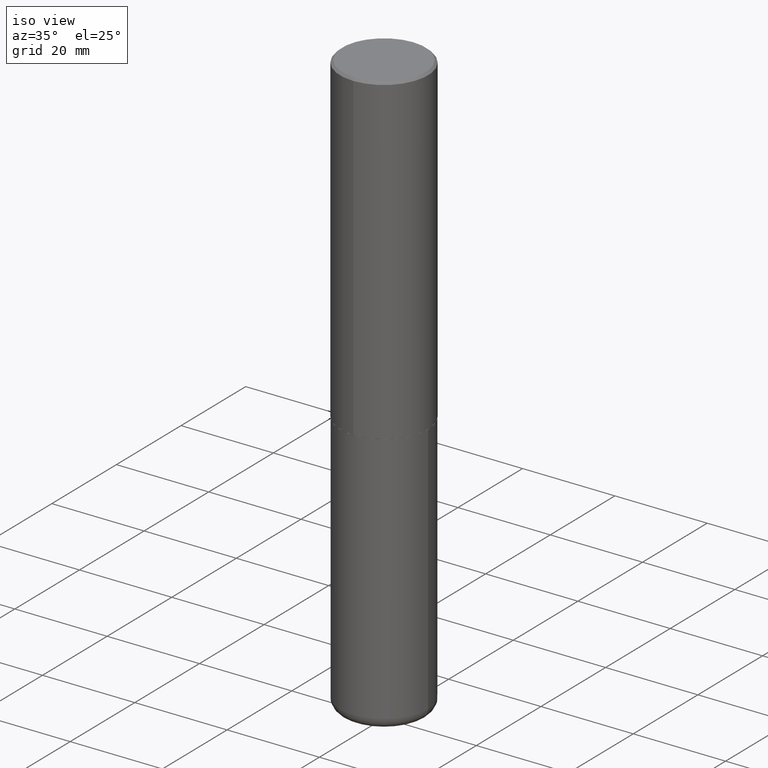
[diagram: clean part render]
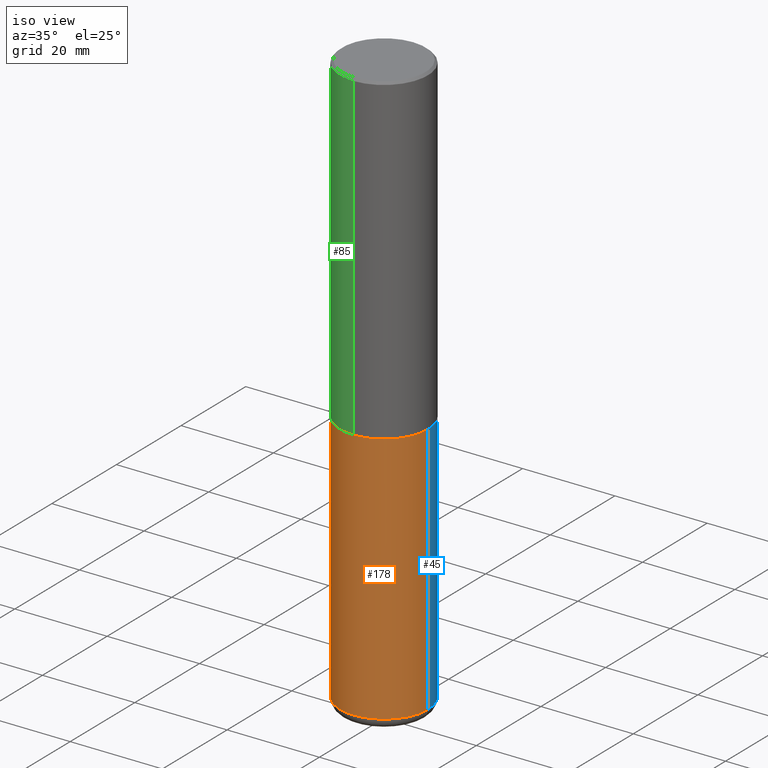
[diagram: same view with three faces highlighted in distinct colors, each labeled with its STEP entity id]
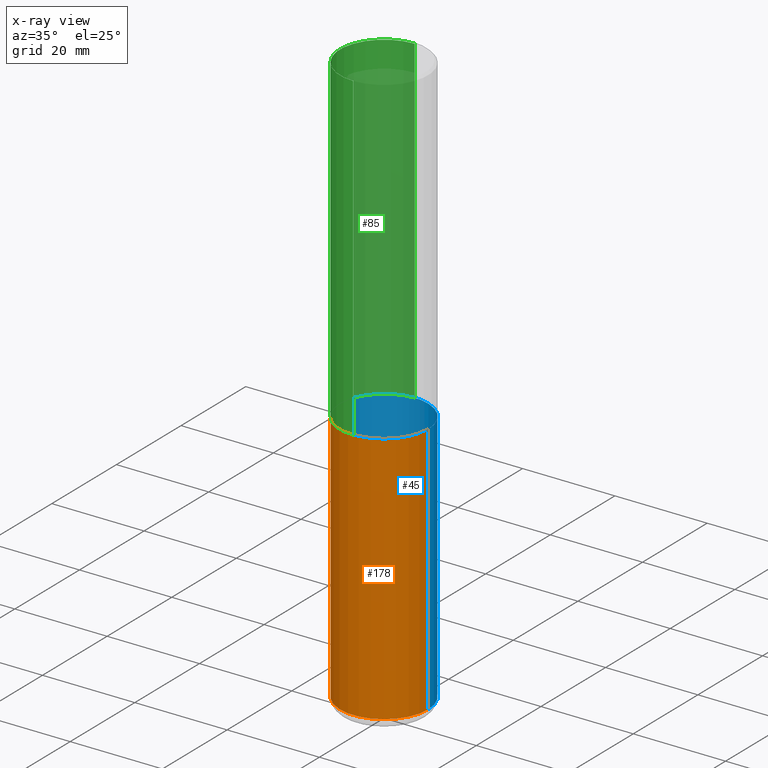
[diagram: x-ray of the same camera — body ghosted, the three highlighted faces saturated]
A machine part, iso view with three faces highlighted in distinct colors.
The next image is the same camera in x-ray (body ghosted, the three faces saturated) — at least one of them is partly hidden behind the body in this view.
Their STEP definitions:

[orange] entity #178 — the highlighted cylindrical surface (partial cylindrical patch) has radius 9.525 mm, axis along (-0, 0, 1).
#9 = EDGE_CURVE ( 'NONE', #321, #94, #116, .T. ) ;
#19 = CARTESIAN_POINT ( 'NONE',  ( -0.3750000000000000555, -1.070783826866887333E-14, -2.750000000000000000 ) ) ;
#20 = DIRECTION ( 'NONE',  ( -2.445468806185136877E-29, 3.491481338843145188E-15, 1.000000000000000000 ) ) ;
#33 = ORIENTED_EDGE ( 'NONE', *, *, #9, .T. ) ;
#34 = DIRECTION ( 'NONE',  ( -2.445468806185136597E-29, 3.491481338843145583E-15, 1.000000000000000000 ) ) ;
#39 = CARTESIAN_POINT ( 'NONE',  ( 0.3749999999999999445, -1.976178437785219664E-14, -4.910000000000000142 ) ) ;
#60 = DIRECTION ( 'NONE',  ( -2.445468806185136597E-29, 3.491481338843145583E-15, 1.000000000000000000 ) ) ;
#70 = CIRCLE ( 'NONE', #402, 0.3749999999999999445 ) ;
#90 = VERTEX_POINT ( 'NONE', #19 ) ;
#91 = VECTOR ( 'NONE', #20, 39.37007874015748143 ) ;
#93 = EDGE_CURVE ( 'NONE', #373, #90, #351, .T. ) ;
#94 = VERTEX_POINT ( 'NONE', #145 ) ;
#99 = AXIS2_PLACEMENT_3D ( 'NONE', #150, #60, #158 ) ;
#106 = DIRECTION ( 'NONE',  ( 1.000000000000000000, -6.982962677686266711E-15, 0.000000000000000000 ) ) ;
#116 = LINE ( 'NONE', #285, #166 ) ;
#145 = CARTESIAN_POINT ( 'NONE',  ( 0.3750000000000000555, -1.222018468595100145E-14, -2.750000000000000000 ) ) ;
#150 = CARTESIAN_POINT ( 'NONE',  ( 0.000000000000000000, 0.000000000000000000, 0.000000000000000000 ) ) ;
#158 = DIRECTION ( 'NONE',  ( 1.000000000000000000, -6.982962677686266711E-15, 4.876176775795935793E-29 ) ) ;
#166 = VECTOR ( 'NONE', #415, 39.37007874015748143 ) ;
#175 = CARTESIAN_POINT ( 'NONE',  ( 1.200725183836902132E-28, -1.714317337371984662E-14, -4.910000000000000142 ) ) ;
#178 = ADVANCED_FACE ( 'NONE', ( #278 ), #375, .T. ) ;
#213 = EDGE_CURVE ( 'NONE', #90, #94, #336, .T. ) ;
#221 = CARTESIAN_POINT ( 'NONE',  ( -0.3749999999999999445, -1.447863811461947092E-14, -4.910000000000000142 ) ) ;
#276 = DIRECTION ( 'NONE',  ( 1.000000000000000000, -6.982962677686269077E-15, 0.000000000000000000 ) ) ;
#278 = FACE_OUTER_BOUND ( 'NONE', #356, .T. ) ;
#285 = CARTESIAN_POINT ( 'NONE',  ( 0.3749999999999999445, -2.618611004132349622E-15, 1.828566290923475642E-29 ) ) ;
#292 = ORIENTED_EDGE ( 'NONE', *, *, #213, .F. ) ;
#306 = DIRECTION ( 'NONE',  ( -2.445468806185136597E-29, 3.491481338843145583E-15, 1.000000000000000000 ) ) ;
#321 = VERTEX_POINT ( 'NONE', #39 ) ;
#336 = CIRCLE ( 'NONE', #374, 0.3750000000000000555 ) ;
#351 = LINE ( 'NONE', #412, #91 ) ;
#356 = EDGE_LOOP ( 'NONE', ( #386, #377, #33, #292 ) ) ;
#367 = CARTESIAN_POINT ( 'NONE',  ( 6.725039217009124520E-29, -9.601573681818649859E-15, -2.750000000000000000 ) ) ;
#373 = VERTEX_POINT ( 'NONE', #221 ) ;
#374 = AXIS2_PLACEMENT_3D ( 'NONE', #367, #34, #106 ) ;
#375 = CYLINDRICAL_SURFACE ( 'NONE', #99, 0.3749999999999999445 ) ;
#377 = ORIENTED_EDGE ( 'NONE', *, *, #405, .T. ) ;
#386 = ORIENTED_EDGE ( 'NONE', *, *, #93, .F. ) ;
#402 = AXIS2_PLACEMENT_3D ( 'NONE', #175, #306, #276 ) ;
#405 = EDGE_CURVE ( 'NONE', #373, #321, #70, .T. ) ;
#412 = CARTESIAN_POINT ( 'NONE',  ( -0.3749999999999999445, 2.664535259100375303E-15, -1.844600658845589318E-29 ) ) ;
#415 = DIRECTION ( 'NONE',  ( -2.445468806185136877E-29, 3.491481338843145188E-15, 1.000000000000000000 ) ) ;

[blue] entity #45 — the highlighted cylindrical surface (partial cylindrical patch) has radius 9.525 mm, axis along (-0, 0, 1).
#1 = AXIS2_PLACEMENT_3D ( 'NONE', #21, #252, #312 ) ;
#9 = EDGE_CURVE ( 'NONE', #321, #94, #116, .T. ) ;
#19 = CARTESIAN_POINT ( 'NONE',  ( -0.3750000000000000555, -1.070783826866887333E-14, -2.750000000000000000 ) ) ;
#20 = DIRECTION ( 'NONE',  ( -2.445468806185136877E-29, 3.491481338843145188E-15, 1.000000000000000000 ) ) ;
#21 = CARTESIAN_POINT ( 'NONE',  ( 0.000000000000000000, 0.000000000000000000, 0.000000000000000000 ) ) ;
#39 = CARTESIAN_POINT ( 'NONE',  ( 0.3749999999999999445, -1.976178437785219664E-14, -4.910000000000000142 ) ) ;
#45 = ADVANCED_FACE ( 'NONE', ( #341 ), #222, .T. ) ;
#46 = ORIENTED_EDGE ( 'NONE', *, *, #288, .T. ) ;
#61 = ORIENTED_EDGE ( 'NONE', *, *, #93, .T. ) ;
#90 = VERTEX_POINT ( 'NONE', #19 ) ;
#91 = VECTOR ( 'NONE', #20, 39.37007874015748143 ) ;
#93 = EDGE_CURVE ( 'NONE', #373, #90, #351, .T. ) ;
#94 = VERTEX_POINT ( 'NONE', #145 ) ;
#116 = LINE ( 'NONE', #285, #166 ) ;
#134 = CARTESIAN_POINT ( 'NONE',  ( 1.200725183836902132E-28, -1.714317337371984662E-14, -4.910000000000000142 ) ) ;
#145 = CARTESIAN_POINT ( 'NONE',  ( 0.3750000000000000555, -1.222018468595100145E-14, -2.750000000000000000 ) ) ;
#161 = CIRCLE ( 'NONE', #310, 0.3749999999999999445 ) ;
#163 = ORIENTED_EDGE ( 'NONE', *, *, #320, .F. ) ;
#166 = VECTOR ( 'NONE', #415, 39.37007874015748143 ) ;
#197 = DIRECTION ( 'NONE',  ( -2.445468806185136597E-29, 3.491481338843145583E-15, 1.000000000000000000 ) ) ;
#206 = CARTESIAN_POINT ( 'NONE',  ( 6.725039217009124520E-29, -9.601573681818649859E-15, -2.750000000000000000 ) ) ;
#221 = CARTESIAN_POINT ( 'NONE',  ( -0.3749999999999999445, -1.447863811461947092E-14, -4.910000000000000142 ) ) ;
#222 = CYLINDRICAL_SURFACE ( 'NONE', #1, 0.3749999999999999445 ) ;
#226 = ORIENTED_EDGE ( 'NONE', *, *, #9, .F. ) ;
#249 = EDGE_LOOP ( 'NONE', ( #46, #61, #163, #226 ) ) ;
#252 = DIRECTION ( 'NONE',  ( -2.445468806185136597E-29, 3.491481338843145583E-15, 1.000000000000000000 ) ) ;
#262 = AXIS2_PLACEMENT_3D ( 'NONE', #206, #304, #394 ) ;
#264 = DIRECTION ( 'NONE',  ( 1.000000000000000000, -6.982962677686269077E-15, 0.000000000000000000 ) ) ;
#285 = CARTESIAN_POINT ( 'NONE',  ( 0.3749999999999999445, -2.618611004132349622E-15, 1.828566290923475642E-29 ) ) ;
#288 = EDGE_CURVE ( 'NONE', #321, #373, #161, .T. ) ;
#302 = CIRCLE ( 'NONE', #262, 0.3750000000000000555 ) ;
#304 = DIRECTION ( 'NONE',  ( -2.445468806185136597E-29, 3.491481338843145583E-15, 1.000000000000000000 ) ) ;
#310 = AXIS2_PLACEMENT_3D ( 'NONE', #134, #197, #264 ) ;
#312 = DIRECTION ( 'NONE',  ( 1.000000000000000000, -6.982962677686266711E-15, 4.876176775795935793E-29 ) ) ;
#320 = EDGE_CURVE ( 'NONE', #94, #90, #302, .T. ) ;
#321 = VERTEX_POINT ( 'NONE', #39 ) ;
#341 = FACE_OUTER_BOUND ( 'NONE', #249, .T. ) ;
#351 = LINE ( 'NONE', #412, #91 ) ;
#373 = VERTEX_POINT ( 'NONE', #221 ) ;
#394 = DIRECTION ( 'NONE',  ( 1.000000000000000000, -6.982962677686266711E-15, 0.000000000000000000 ) ) ;
#412 = CARTESIAN_POINT ( 'NONE',  ( -0.3749999999999999445, 2.664535259100375303E-15, -1.844600658845589318E-29 ) ) ;
#415 = DIRECTION ( 'NONE',  ( -2.445468806185136877E-29, 3.491481338843145188E-15, 1.000000000000000000 ) ) ;

[green] entity #85 — the highlighted cylindrical surface (partial cylindrical patch) has radius 9.525 mm, axis along (-0, 0, 1).
#7 = EDGE_CURVE ( 'NONE', #117, #259, #101, .T. ) ;
#27 = ORIENTED_EDGE ( 'NONE', *, *, #271, .F. ) ;
#40 = CARTESIAN_POINT ( 'NONE',  ( 2.664535259100376880E-15, 0.3750000000000002220, -1.308998548422625521E-15 ) ) ;
#41 = CARTESIAN_POINT ( 'NONE',  ( 4.892080783483214581E-31, -6.981325591587361238E-17, -0.02000000000000008715 ) ) ;
#71 = CIRCLE ( 'NONE', #389, 0.3750000000000000555 ) ;
#85 = ADVANCED_FACE ( 'NONE', ( #279 ), #409, .T. ) ;
#87 = CARTESIAN_POINT ( 'NONE',  ( -2.572686749164323547E-15, -0.3750000000000001110, -0.01999999999999877570 ) ) ;
#89 = CARTESIAN_POINT ( 'NONE',  ( 2.664535259100411196E-15, 0.3749999999999907296, -2.749000000000000998 ) ) ;
#101 = CIRCLE ( 'NONE', #331, 0.3750000000000003886 ) ;
#105 = DIRECTION ( 'NONE',  ( -2.446040391741596606E-29, 3.490662795793665557E-15, 1.000000000000000000 ) ) ;
#112 = DIRECTION ( 'NONE',  ( -2.446040391741596606E-29, 3.490662795793665557E-15, 1.000000000000000000 ) ) ;
#117 = VERTEX_POINT ( 'NONE', #89 ) ;
#138 = CARTESIAN_POINT ( 'NONE',  ( 2.618611004132350411E-15, 0.3749999999999999445, -0.02000000000000139513 ) ) ;
#144 = ORIENTED_EDGE ( 'NONE', *, *, #210, .T. ) ;
#155 = EDGE_CURVE ( 'NONE', #117, #353, #205, .T. ) ;
#202 = AXIS2_PLACEMENT_3D ( 'NONE', #349, #215, #211 ) ;
#205 = LINE ( 'NONE', #40, #281 ) ;
#207 = DIRECTION ( 'NONE',  ( -2.446040391741596606E-29, 3.490662795793665557E-15, 1.000000000000000000 ) ) ;
#210 = EDGE_CURVE ( 'NONE', #259, #416, #418, .T. ) ;
#211 = DIRECTION ( 'NONE',  ( -6.982962677686266711E-15, -1.000000000000000000, 3.490662795793665951E-15 ) ) ;
#215 = DIRECTION ( 'NONE',  ( -2.446040391741596606E-29, 3.490662795793665557E-15, 1.000000000000000000 ) ) ;
#233 = DIRECTION ( 'NONE',  ( -2.446040391741596606E-29, 3.490662795793665557E-15, 1.000000000000000000 ) ) ;
#234 = ORIENTED_EDGE ( 'NONE', *, *, #7, .T. ) ;
#248 = DIRECTION ( 'NONE',  ( -6.982962677686265922E-15, -1.000000000000000000, 2.913971193241877611E-15 ) ) ;
#259 = VERTEX_POINT ( 'NONE', #368 ) ;
#271 = EDGE_CURVE ( 'NONE', #353, #416, #71, .T. ) ;
#279 = FACE_OUTER_BOUND ( 'NONE', #326, .T. ) ;
#281 = VECTOR ( 'NONE', #207, 39.37007874015748143 ) ;
#291 = CARTESIAN_POINT ( 'NONE',  ( -2.618611004132351594E-15, -0.3750000000000002220, 1.308998548422625521E-15 ) ) ;
#309 = CARTESIAN_POINT ( 'NONE',  ( 6.724165036897648492E-29, -9.595832025636787455E-15, -2.749000000000000110 ) ) ;
#324 = ORIENTED_EDGE ( 'NONE', *, *, #155, .F. ) ;
#326 = EDGE_LOOP ( 'NONE', ( #324, #234, #144, #27 ) ) ;
#331 = AXIS2_PLACEMENT_3D ( 'NONE', #309, #112, #248 ) ;
#349 = CARTESIAN_POINT ( 'NONE',  ( 0.000000000000000000, 0.000000000000000000, 0.000000000000000000 ) ) ;
#353 = VERTEX_POINT ( 'NONE', #138 ) ;
#368 = CARTESIAN_POINT ( 'NONE',  ( -2.618611004132284935E-15, -0.3750000000000099920, -2.748999999999999222 ) ) ;
#381 = VECTOR ( 'NONE', #233, 39.37007874015748143 ) ;
#389 = AXIS2_PLACEMENT_3D ( 'NONE', #41, #105, #398 ) ;
#398 = DIRECTION ( 'NONE',  ( -6.982962677686265922E-15, -1.000000000000000000, 3.494488891895536035E-15 ) ) ;
#409 = CYLINDRICAL_SURFACE ( 'NONE', #202, 0.3750000000000002220 ) ;
#416 = VERTEX_POINT ( 'NONE', #87 ) ;
#418 = LINE ( 'NONE', #291, #381 ) ;